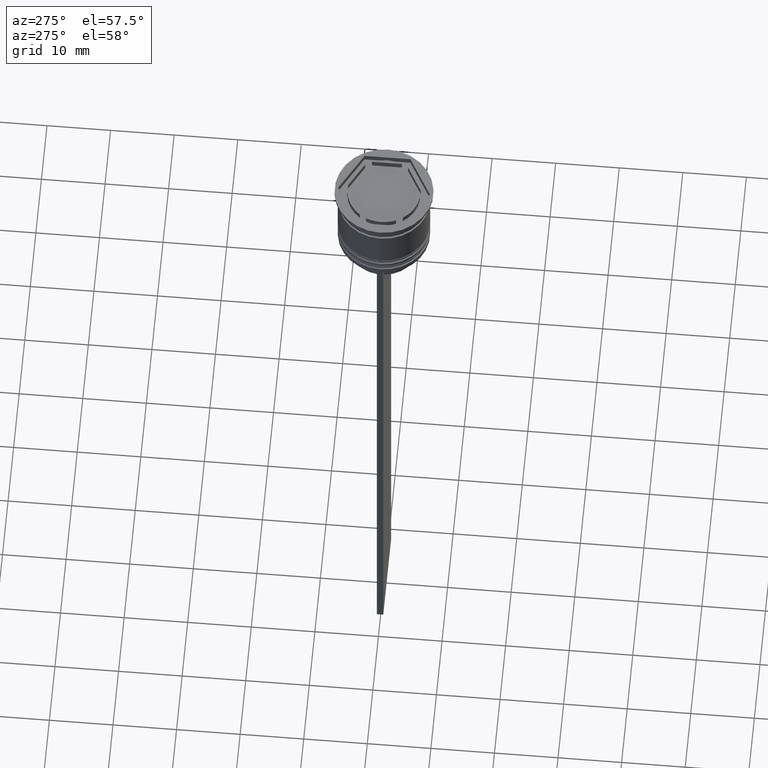
[diagram: clean part render]
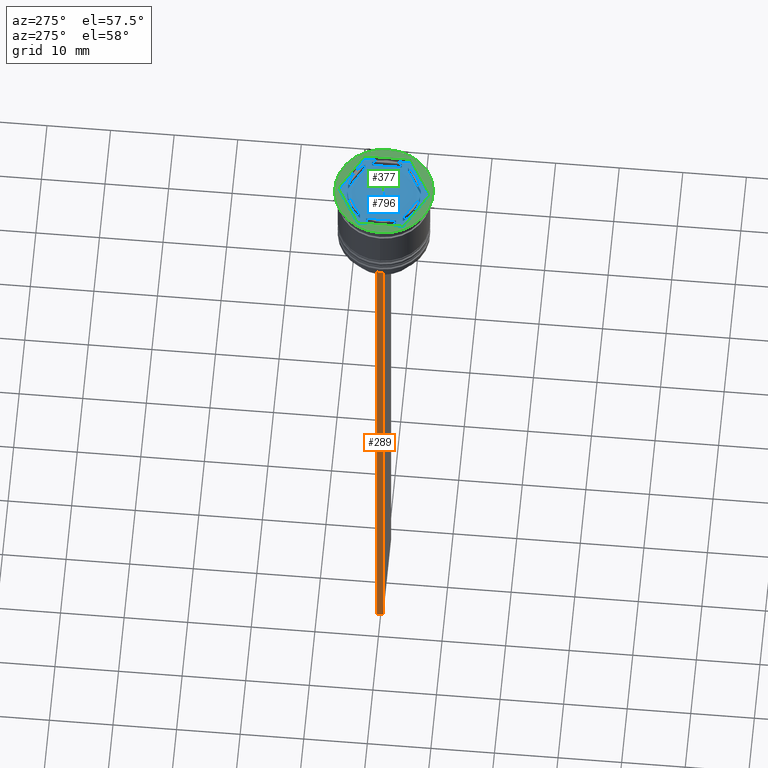
[diagram: same view with three faces highlighted in distinct colors, each labeled with its STEP entity id]
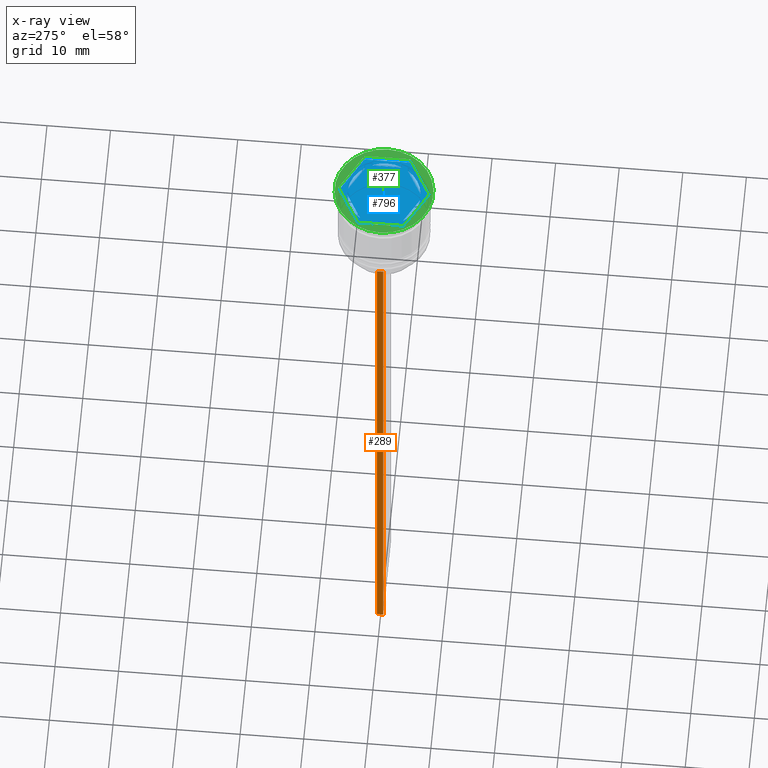
[diagram: x-ray of the same camera — body ghosted, the three highlighted faces saturated]
A machine part, auxiliary view with three faces highlighted in distinct colors.
The next image is the same camera in x-ray (body ghosted, the three faces saturated) — at least one of them is partly hidden behind the body in this view.
Their STEP definitions:

[orange] entity #289 — the highlighted planar face has unit normal (-1, 0, 0).
#46 = AXIS2_PLACEMENT_3D ( 'NONE', #1475, #1619, #1843 ) ;
#97 = CARTESIAN_POINT ( 'NONE',  ( -6.999999999999987566, -0.5000000000000022204, -112.5000000000000000 ) ) ;
#136 = VERTEX_POINT ( 'NONE', #329 ) ;
#168 = VERTEX_POINT ( 'NONE', #2077 ) ;
#178 = EDGE_CURVE ( 'NONE', #168, #136, #284, .T. ) ;
#193 = ORIENTED_EDGE ( 'NONE', *, *, #511, .F. ) ;
#216 = PLANE ( 'NONE',  #46 ) ;
#225 = DIRECTION ( 'NONE',  ( 0.000000000000000000, -1.000000000000000000, 0.000000000000000000 ) ) ;
#258 = EDGE_CURVE ( 'NONE', #1605, #136, #1715, .T. ) ;
#284 = LINE ( 'NONE', #449, #1261 ) ;
#289 = ADVANCED_FACE ( 'NONE', ( #1995 ), #216, .T. ) ;
#329 = CARTESIAN_POINT ( 'NONE',  ( -6.999999999999987566, 0.4999999999999978351, -112.5000000000000000 ) ) ;
#449 = CARTESIAN_POINT ( 'NONE',  ( -6.999999999999987566, 0.4999999999999978351, 1.535668847618198329 ) ) ;
#457 = LINE ( 'NONE', #1672, #2056 ) ;
#511 = EDGE_CURVE ( 'NONE', #168, #2104, #2271, .T. ) ;
#516 = EDGE_CURVE ( 'NONE', #2104, #1605, #457, .T. ) ;
#559 = CARTESIAN_POINT ( 'NONE',  ( -6.999999999999987566, -0.5000000000000022204, -12.50000000000000000 ) ) ;
#729 = VECTOR ( 'NONE', #1098, 1000.000000000000000 ) ;
#731 = VECTOR ( 'NONE', #225, 1000.000000000000000 ) ;
#777 = DIRECTION ( 'NONE',  ( 0.000000000000000000, 0.000000000000000000, -1.000000000000000000 ) ) ;
#1098 = DIRECTION ( 'NONE',  ( 0.000000000000000000, 1.000000000000000000, 0.000000000000000000 ) ) ;
#1261 = VECTOR ( 'NONE', #1979, 1000.000000000000000 ) ;
#1275 = ORIENTED_EDGE ( 'NONE', *, *, #178, .T. ) ;
#1393 = CARTESIAN_POINT ( 'NONE',  ( -6.999999999999987566, -0.5000000000000022204, -112.5000000000000000 ) ) ;
#1475 = CARTESIAN_POINT ( 'NONE',  ( -6.999999999999987566, -0.5000000000000022204, 1.535668847618198329 ) ) ;
#1535 = CARTESIAN_POINT ( 'NONE',  ( -6.999999999999987566, -0.5000000000000022204, -12.50000000000000000 ) ) ;
#1545 = ORIENTED_EDGE ( 'NONE', *, *, #516, .F. ) ;
#1605 = VERTEX_POINT ( 'NONE', #1393 ) ;
#1619 = DIRECTION ( 'NONE',  ( -1.000000000000000000, 0.000000000000000000, 0.000000000000000000 ) ) ;
#1672 = CARTESIAN_POINT ( 'NONE',  ( -6.999999999999987566, -0.5000000000000022204, 1.535668847618198329 ) ) ;
#1715 = LINE ( 'NONE', #97, #729 ) ;
#1814 = EDGE_LOOP ( 'NONE', ( #193, #1275, #2010, #1545 ) ) ;
#1843 = DIRECTION ( 'NONE',  ( 0.000000000000000000, 0.000000000000000000, 1.000000000000000000 ) ) ;
#1979 = DIRECTION ( 'NONE',  ( 0.000000000000000000, 0.000000000000000000, -1.000000000000000000 ) ) ;
#1995 = FACE_OUTER_BOUND ( 'NONE', #1814, .T. ) ;
#2010 = ORIENTED_EDGE ( 'NONE', *, *, #258, .F. ) ;
#2056 = VECTOR ( 'NONE', #777, 1000.000000000000000 ) ;
#2077 = CARTESIAN_POINT ( 'NONE',  ( -6.999999999999987566, 0.4999999999999980571, -12.50000000000000000 ) ) ;
#2104 = VERTEX_POINT ( 'NONE', #559 ) ;
#2271 = LINE ( 'NONE', #1535, #731 ) ;

[blue] entity #796 — the highlighted planar face has unit normal (0, 0, 1).
#8 = CARTESIAN_POINT ( 'NONE',  ( -5.249999999999999112, 2.345207879911715310, -1.000000000000000888 ) ) ;
#28 = ORIENTED_EDGE ( 'NONE', *, *, #1305, .T. ) ;
#36 = CARTESIAN_POINT ( 'NONE',  ( 0.5939903988410074609, -5.719237309824160675, -1.000000000000000888 ) ) ;
#56 = CARTESIAN_POINT ( 'NONE',  ( 0.000000000000000000, 0.000000000000000000, -1.000000000000000000 ) ) ;
#71 = FACE_BOUND ( 'NONE', #515, .T. ) ;
#102 = VERTEX_POINT ( 'NONE', #947 ) ;
#128 = VECTOR ( 'NONE', #1274, 1000.000000000000114 ) ;
#150 = LINE ( 'NONE', #1408, #1714 ) ;
#152 = ORIENTED_EDGE ( 'NONE', *, *, #1771, .F. ) ;
#162 = EDGE_CURVE ( 'NONE', #1618, #965, #1233, .T. ) ;
#164 = ORIENTED_EDGE ( 'NONE', *, *, #558, .T. ) ;
#210 = CARTESIAN_POINT ( 'NONE',  ( 0.000000000000000000, 0.000000000000000000, -1.000000000000000000 ) ) ;
#227 = EDGE_CURVE ( 'NONE', #102, #1012, #1481, .T. ) ;
#237 = CARTESIAN_POINT ( 'NONE',  ( 6.250000000000000000, 3.608439182435161374, -1.000000000000000000 ) ) ;
#259 = ORIENTED_EDGE ( 'NONE', *, *, #420, .F. ) ;
#275 = DIRECTION ( 'NONE',  ( -0.8660254037844387076, -0.4999999999999997224, 0.000000000000000000 ) ) ;
#280 = FACE_BOUND ( 'NONE', #1989, .T. ) ;
#283 = CIRCLE ( 'NONE', #628, 5.750000000000000000 ) ;
#286 = DIRECTION ( 'NONE',  ( 1.000000000000000000, 0.000000000000000000, 0.000000000000000000 ) ) ;
#315 = VECTOR ( 'NONE', #1465, 1000.000000000000114 ) ;
#328 = VERTEX_POINT ( 'NONE', #8 ) ;
#339 = EDGE_LOOP ( 'NONE', ( #2141, #152 ) ) ;
#343 = VERTEX_POINT ( 'NONE', #1799 ) ;
#346 = DIRECTION ( 'NONE',  ( -0.8660254037844388186, 0.4999999999999997224, 0.000000000000000000 ) ) ;
#347 = EDGE_CURVE ( 'NONE', #328, #788, #465, .T. ) ;
#348 = LINE ( 'NONE', #1658, #585 ) ;
#353 = CIRCLE ( 'NONE', #2246, 5.750000000000000000 ) ;
#358 = VECTOR ( 'NONE', #1223, 1000.000000000000000 ) ;
#372 = ORIENTED_EDGE ( 'NONE', *, *, #2076, .F. ) ;
#382 = VERTEX_POINT ( 'NONE', #1142 ) ;
#406 = CARTESIAN_POINT ( 'NONE',  ( -1.734723475976807094E-15, -6.062177826491069510, -1.000000000000000888 ) ) ;
#411 = DIRECTION ( 'NONE',  ( -1.430775808321103440E-16, -1.000000000000000000, 0.000000000000000000 ) ) ;
#420 = EDGE_CURVE ( 'NONE', #1450, #2317, #1180, .T. ) ;
#429 = VERTEX_POINT ( 'NONE', #1880 ) ;
#437 = DIRECTION ( 'NONE',  ( 0.000000000000000000, 0.000000000000000000, 1.000000000000000000 ) ) ;
#452 = VERTEX_POINT ( 'NONE', #1500 ) ;
#465 = CIRCLE ( 'NONE', #1748, 5.750000000000000000 ) ;
#467 = EDGE_CURVE ( 'NONE', #2317, #1450, #845, .T. ) ;
#469 = EDGE_LOOP ( 'NONE', ( #2179, #1251, #907, #164, #893, #28 ) ) ;
#470 = CARTESIAN_POINT ( 'NONE',  ( -6.249999999999999112, -3.608439182435161374, -1.000000000000000000 ) ) ;
#478 = CIRCLE ( 'NONE', #1388, 5.750000000000000000 ) ;
#479 = DIRECTION ( 'NONE',  ( 0.000000000000000000, 0.000000000000000000, 1.000000000000000000 ) ) ;
#499 = CARTESIAN_POINT ( 'NONE',  ( -5.249999999999999112, 3.031088913245535199, -1.000000000000000888 ) ) ;
#506 = ORIENTED_EDGE ( 'NONE', *, *, #347, .F. ) ;
#515 = EDGE_LOOP ( 'NONE', ( #1985, #259 ) ) ;
#523 = DIRECTION ( 'NONE',  ( 1.000000000000000000, 0.000000000000000000, 0.000000000000000000 ) ) ;
#542 = VECTOR ( 'NONE', #1362, 1000.000000000000000 ) ;
#557 = DIRECTION ( 'NONE',  ( 1.000000000000000000, 0.000000000000000000, 0.000000000000000000 ) ) ;
#558 = EDGE_CURVE ( 'NONE', #452, #1323, #1579, .T. ) ;
#562 = CARTESIAN_POINT ( 'NONE',  ( -5.249999999999999112, -3.031088913245534311, -1.000000000000000888 ) ) ;
#577 = DIRECTION ( 'NONE',  ( 1.000000000000000000, 0.000000000000000000, 0.000000000000000000 ) ) ;
#585 = VECTOR ( 'NONE', #915, 1000.000000000000000 ) ;
#616 = CARTESIAN_POINT ( 'NONE',  ( 0.000000000000000000, 0.000000000000000000, -1.000000000000000000 ) ) ;
#628 = AXIS2_PLACEMENT_3D ( 'NONE', #2290, #668, #286 ) ;
#668 = DIRECTION ( 'NONE',  ( 0.000000000000000000, 0.000000000000000000, 1.000000000000000000 ) ) ;
#674 = EDGE_CURVE ( 'NONE', #1467, #1227, #1588, .T. ) ;
#677 = LINE ( 'NONE', #499, #358 ) ;
#696 = CARTESIAN_POINT ( 'NONE',  ( 0.000000000000000000, 0.000000000000000000, -1.000000000000000000 ) ) ;
#704 = EDGE_LOOP ( 'NONE', ( #2184, #1863 ) ) ;
#788 = VERTEX_POINT ( 'NONE', #972 ) ;
#791 = FACE_BOUND ( 'NONE', #704, .T. ) ;
#794 = DIRECTION ( 'NONE',  ( 0.000000000000000000, -1.000000000000000000, 0.000000000000000000 ) ) ;
#796 = ADVANCED_FACE ( 'NONE', ( #2040, #280, #71, #791, #2236, #2250, #2262 ), #1360, .T. ) ;
#832 = EDGE_CURVE ( 'NONE', #788, #429, #353, .T. ) ;
#845 = CIRCLE ( 'NONE', #2169, 5.750000000000000000 ) ;
#864 = DIRECTION ( 'NONE',  ( 0.000000000000000000, 0.000000000000000000, 1.000000000000000000 ) ) ;
#893 = ORIENTED_EDGE ( 'NONE', *, *, #900, .T. ) ;
#900 = EDGE_CURVE ( 'NONE', #1323, #932, #150, .T. ) ;
#907 = ORIENTED_EDGE ( 'NONE', *, *, #1851, .T. ) ;
#915 = DIRECTION ( 'NONE',  ( 2.403703357979454647E-16, 1.000000000000000000, 0.000000000000000000 ) ) ;
#917 = VERTEX_POINT ( 'NONE', #2026 ) ;
#920 = AXIS2_PLACEMENT_3D ( 'NONE', #616, #437, #1882 ) ;
#932 = VERTEX_POINT ( 'NONE', #1298 ) ;
#947 = CARTESIAN_POINT ( 'NONE',  ( 5.249999999999997335, -2.345207879911720639, -1.000000000000000888 ) ) ;
#965 = VERTEX_POINT ( 'NONE', #2084 ) ;
#972 = CARTESIAN_POINT ( 'NONE',  ( -5.750000000000000000, 0.000000000000000000, -1.000000000000000000 ) ) ;
#973 = DIRECTION ( 'NONE',  ( 0.000000000000000000, 0.000000000000000000, 1.000000000000000000 ) ) ;
#1012 = VERTEX_POINT ( 'NONE', #1501 ) ;
#1040 = VECTOR ( 'NONE', #794, 1000.000000000000000 ) ;
#1056 = CARTESIAN_POINT ( 'NONE',  ( 5.249999999999997335, 3.031088913245537864, -1.000000000000000888 ) ) ;
#1061 = ORIENTED_EDGE ( 'NONE', *, *, #832, .F. ) ;
#1072 = CARTESIAN_POINT ( 'NONE',  ( 8.729740977282959667E-16, -7.216878364870321860, -1.000000000000000000 ) ) ;
#1082 = VECTOR ( 'NONE', #411, 1000.000000000000000 ) ;
#1086 = VERTEX_POINT ( 'NONE', #1711 ) ;
#1087 = LINE ( 'NONE', #1808, #315 ) ;
#1109 = CARTESIAN_POINT ( 'NONE',  ( 0.000000000000000000, 0.000000000000000000, -1.000000000000000000 ) ) ;
#1142 = CARTESIAN_POINT ( 'NONE',  ( -4.656009601158991096, -3.374029429912444034, -1.000000000000000888 ) ) ;
#1152 = LINE ( 'NONE', #2256, #1040 ) ;
#1180 = LINE ( 'NONE', #406, #1597 ) ;
#1203 = DIRECTION ( 'NONE',  ( 1.000000000000000000, 0.000000000000000000, 0.000000000000000000 ) ) ;
#1222 = AXIS2_PLACEMENT_3D ( 'NONE', #696, #1375, #523 ) ;
#1223 = DIRECTION ( 'NONE',  ( 0.000000000000000000, 1.000000000000000000, 0.000000000000000000 ) ) ;
#1227 = VERTEX_POINT ( 'NONE', #1796 ) ;
#1233 = LINE ( 'NONE', #1702, #542 ) ;
#1251 = ORIENTED_EDGE ( 'NONE', *, *, #1363, .T. ) ;
#1274 = DIRECTION ( 'NONE',  ( -0.8660254037844384856, 0.5000000000000002220, 0.000000000000000000 ) ) ;
#1298 = CARTESIAN_POINT ( 'NONE',  ( 6.249999999999998224, -3.608439182435161374, -1.000000000000000000 ) ) ;
#1300 = DIRECTION ( 'NONE',  ( 1.000000000000000000, 0.000000000000000000, 0.000000000000000000 ) ) ;
#1305 = EDGE_CURVE ( 'NONE', #932, #1467, #348, .T. ) ;
#1313 = ORIENTED_EDGE ( 'NONE', *, *, #2036, .F. ) ;
#1323 = VERTEX_POINT ( 'NONE', #1072 ) ;
#1325 = VERTEX_POINT ( 'NONE', #1431 ) ;
#1360 = PLANE ( 'NONE',  #920 ) ;
#1362 = DIRECTION ( 'NONE',  ( 0.8660254037844387076, 0.4999999999999999445, -0.000000000000000000 ) ) ;
#1363 = EDGE_CURVE ( 'NONE', #1227, #1086, #1087, .T. ) ;
#1375 = DIRECTION ( 'NONE',  ( 0.000000000000000000, 0.000000000000000000, 1.000000000000000000 ) ) ;
#1388 = AXIS2_PLACEMENT_3D ( 'NONE', #210, #973, #1300 ) ;
#1403 = CARTESIAN_POINT ( 'NONE',  ( -4.656009601158989319, 3.374029429912446698, -1.000000000000000888 ) ) ;
#1408 = CARTESIAN_POINT ( 'NONE',  ( 8.729740977282959667E-16, -7.216878364870321860, -1.000000000000000000 ) ) ;
#1426 = EDGE_LOOP ( 'NONE', ( #1313, #1820 ) ) ;
#1431 = CARTESIAN_POINT ( 'NONE',  ( 4.656009601158988431, 3.374029429912448919, -1.000000000000000888 ) ) ;
#1435 = CARTESIAN_POINT ( 'NONE',  ( 0.000000000000000000, 0.000000000000000000, -1.000000000000000000 ) ) ;
#1450 = VERTEX_POINT ( 'NONE', #2081 ) ;
#1465 = DIRECTION ( 'NONE',  ( -0.8660254037844385966, -0.5000000000000001110, 0.000000000000000000 ) ) ;
#1467 = VERTEX_POINT ( 'NONE', #237 ) ;
#1481 = CIRCLE ( 'NONE', #1222, 5.750000000000000000 ) ;
#1493 = CIRCLE ( 'NONE', #2067, 5.750000000000000000 ) ;
#1500 = CARTESIAN_POINT ( 'NONE',  ( -6.249999999999999112, -3.608439182435161374, -1.000000000000000000 ) ) ;
#1501 = CARTESIAN_POINT ( 'NONE',  ( 5.249999999999997335, 2.345207879911718862, -1.000000000000000888 ) ) ;
#1503 = CARTESIAN_POINT ( 'NONE',  ( 5.249999999999996447, -3.031088913245536975, -1.000000000000000888 ) ) ;
#1579 = LINE ( 'NONE', #470, #2243 ) ;
#1588 = LINE ( 'NONE', #2315, #1944 ) ;
#1597 = VECTOR ( 'NONE', #275, 1000.000000000000114 ) ;
#1618 = VERTEX_POINT ( 'NONE', #1403 ) ;
#1658 = CARTESIAN_POINT ( 'NONE',  ( 6.249999999999998224, -3.608439182435161374, -1.000000000000000000 ) ) ;
#1660 = DIRECTION ( 'NONE',  ( 0.000000000000000000, 0.000000000000000000, 1.000000000000000000 ) ) ;
#1676 = EDGE_CURVE ( 'NONE', #343, #382, #2327, .T. ) ;
#1702 = CARTESIAN_POINT ( 'NONE',  ( 8.673617379884035472E-16, 6.062177826491070398, -1.000000000000000888 ) ) ;
#1711 = CARTESIAN_POINT ( 'NONE',  ( -6.249999999999999112, 3.608439182435158710, -1.000000000000000000 ) ) ;
#1714 = VECTOR ( 'NONE', #2136, 1000.000000000000000 ) ;
#1744 = DIRECTION ( 'NONE',  ( 0.8660254037844385966, -0.4999999999999998890, 0.000000000000000000 ) ) ;
#1748 = AXIS2_PLACEMENT_3D ( 'NONE', #1109, #1660, #557 ) ;
#1771 = EDGE_CURVE ( 'NONE', #917, #1325, #1972, .T. ) ;
#1777 = DIRECTION ( 'NONE',  ( 0.8660254037844387076, -0.4999999999999998335, 0.000000000000000000 ) ) ;
#1796 = CARTESIAN_POINT ( 'NONE',  ( 0.000000000000000000, 7.216878364870320084, -1.000000000000000000 ) ) ;
#1799 = CARTESIAN_POINT ( 'NONE',  ( -0.5939903988410105695, -5.719237309824160675, -1.000000000000000888 ) ) ;
#1808 = CARTESIAN_POINT ( 'NONE',  ( 0.000000000000000000, 7.216878364870320084, -1.000000000000000000 ) ) ;
#1820 = ORIENTED_EDGE ( 'NONE', *, *, #162, .F. ) ;
#1851 = EDGE_CURVE ( 'NONE', #1086, #452, #1152, .T. ) ;
#1863 = ORIENTED_EDGE ( 'NONE', *, *, #1676, .F. ) ;
#1880 = CARTESIAN_POINT ( 'NONE',  ( -5.249999999999999112, -2.345207879911715310, -1.000000000000000888 ) ) ;
#1882 = DIRECTION ( 'NONE',  ( 1.000000000000000000, 0.000000000000000000, -0.000000000000000000 ) ) ;
#1904 = DIRECTION ( 'NONE',  ( 0.000000000000000000, 0.000000000000000000, 1.000000000000000000 ) ) ;
#1923 = EDGE_LOOP ( 'NONE', ( #506, #372, #1061 ) ) ;
#1944 = VECTOR ( 'NONE', #346, 1000.000000000000000 ) ;
#1972 = LINE ( 'NONE', #1056, #2215 ) ;
#1985 = ORIENTED_EDGE ( 'NONE', *, *, #467, .F. ) ;
#1989 = EDGE_LOOP ( 'NONE', ( #2257, #2127 ) ) ;
#1993 = EDGE_CURVE ( 'NONE', #1325, #917, #1493, .T. ) ;
#2026 = CARTESIAN_POINT ( 'NONE',  ( 0.5939903988410126789, 5.719237309824160675, -1.000000000000000888 ) ) ;
#2036 = EDGE_CURVE ( 'NONE', #965, #1618, #283, .T. ) ;
#2040 = FACE_BOUND ( 'NONE', #339, .T. ) ;
#2041 = LINE ( 'NONE', #1503, #1082 ) ;
#2067 = AXIS2_PLACEMENT_3D ( 'NONE', #2115, #479, #1203 ) ;
#2076 = EDGE_CURVE ( 'NONE', #429, #328, #677, .T. ) ;
#2081 = CARTESIAN_POINT ( 'NONE',  ( 4.656009601158990208, -3.374029429912445810, -1.000000000000000888 ) ) ;
#2083 = DIRECTION ( 'NONE',  ( 1.000000000000000000, 0.000000000000000000, 0.000000000000000000 ) ) ;
#2084 = CARTESIAN_POINT ( 'NONE',  ( -0.5939903988410105695, 5.719237309824159787, -1.000000000000000888 ) ) ;
#2115 = CARTESIAN_POINT ( 'NONE',  ( 0.000000000000000000, 0.000000000000000000, -1.000000000000000000 ) ) ;
#2127 = ORIENTED_EDGE ( 'NONE', *, *, #2296, .F. ) ;
#2136 = DIRECTION ( 'NONE',  ( 0.8660254037844385966, 0.5000000000000001110, 0.000000000000000000 ) ) ;
#2141 = ORIENTED_EDGE ( 'NONE', *, *, #1993, .F. ) ;
#2169 = AXIS2_PLACEMENT_3D ( 'NONE', #56, #1904, #2083 ) ;
#2179 = ORIENTED_EDGE ( 'NONE', *, *, #674, .T. ) ;
#2184 = ORIENTED_EDGE ( 'NONE', *, *, #2249, .F. ) ;
#2215 = VECTOR ( 'NONE', #1777, 1000.000000000000114 ) ;
#2236 = FACE_BOUND ( 'NONE', #1923, .T. ) ;
#2243 = VECTOR ( 'NONE', #1744, 1000.000000000000227 ) ;
#2246 = AXIS2_PLACEMENT_3D ( 'NONE', #1435, #864, #577 ) ;
#2249 = EDGE_CURVE ( 'NONE', #382, #343, #478, .T. ) ;
#2250 = FACE_BOUND ( 'NONE', #1426, .T. ) ;
#2256 = CARTESIAN_POINT ( 'NONE',  ( -6.249999999999999112, 3.608439182435158710, -1.000000000000000000 ) ) ;
#2257 = ORIENTED_EDGE ( 'NONE', *, *, #227, .F. ) ;
#2262 = FACE_OUTER_BOUND ( 'NONE', #469, .T. ) ;
#2290 = CARTESIAN_POINT ( 'NONE',  ( 0.000000000000000000, 0.000000000000000000, -1.000000000000000000 ) ) ;
#2296 = EDGE_CURVE ( 'NONE', #1012, #102, #2041, .T. ) ;
#2315 = CARTESIAN_POINT ( 'NONE',  ( 6.250000000000000000, 3.608439182435161374, -1.000000000000000000 ) ) ;
#2317 = VERTEX_POINT ( 'NONE', #36 ) ;
#2327 = LINE ( 'NONE', #562, #128 ) ;

[green] entity #377 — the highlighted planar face has unit normal (0, -0, 1).
#89 = EDGE_CURVE ( 'NONE', #872, #1255, #1884, .T. ) ;
#103 = DIRECTION ( 'NONE',  ( 1.000000000000000000, 0.000000000000000000, 0.000000000000000000 ) ) ;
#104 = DIRECTION ( 'NONE',  ( 2.403703357979454647E-16, 1.000000000000000000, 0.000000000000000000 ) ) ;
#195 = VERTEX_POINT ( 'NONE', #1896 ) ;
#202 = AXIS2_PLACEMENT_3D ( 'NONE', #827, #1134, #801 ) ;
#209 = FACE_BOUND ( 'NONE', #332, .T. ) ;
#239 = AXIS2_PLACEMENT_3D ( 'NONE', #1356, #759, #967 ) ;
#240 = DIRECTION ( 'NONE',  ( 0.8660254037844385966, 0.5000000000000001110, 0.000000000000000000 ) ) ;
#332 = EDGE_LOOP ( 'NONE', ( #2023, #1915, #1582, #503, #2156, #1849 ) ) ;
#377 = ADVANCED_FACE ( 'NONE', ( #209, #2189 ), #2038, .T. ) ;
#400 = DIRECTION ( 'NONE',  ( -0.8660254037844385966, -0.5000000000000001110, 0.000000000000000000 ) ) ;
#403 = EDGE_CURVE ( 'NONE', #1860, #1415, #2058, .T. ) ;
#419 = LINE ( 'NONE', #615, #887 ) ;
#444 = CARTESIAN_POINT ( 'NONE',  ( 6.249999999999998224, -3.608439182435161374, 0.000000000000000000 ) ) ;
#490 = DIRECTION ( 'NONE',  ( -0.8660254037844388186, 0.4999999999999997224, 0.000000000000000000 ) ) ;
#503 = ORIENTED_EDGE ( 'NONE', *, *, #683, .F. ) ;
#615 = CARTESIAN_POINT ( 'NONE',  ( 6.249999999999998224, -3.608439182435161374, 0.000000000000000000 ) ) ;
#638 = CARTESIAN_POINT ( 'NONE',  ( 0.000000000000000000, 0.000000000000000000, 0.000000000000000000 ) ) ;
#662 = CIRCLE ( 'NONE', #202, 7.750000000000000000 ) ;
#683 = EDGE_CURVE ( 'NONE', #1283, #1860, #708, .T. ) ;
#708 = LINE ( 'NONE', #1974, #2287 ) ;
#759 = DIRECTION ( 'NONE',  ( -0.000000000000000000, -0.000000000000000000, 1.000000000000000000 ) ) ;
#769 = VECTOR ( 'NONE', #2120, 1000.000000000000000 ) ;
#789 = DIRECTION ( 'NONE',  ( 0.000000000000000000, -0.000000000000000000, 1.000000000000000000 ) ) ;
#801 = DIRECTION ( 'NONE',  ( 1.000000000000000000, 0.000000000000000000, 0.000000000000000000 ) ) ;
#827 = CARTESIAN_POINT ( 'NONE',  ( 0.000000000000000000, 0.000000000000000000, 0.000000000000000000 ) ) ;
#866 = EDGE_LOOP ( 'NONE', ( #1295, #2094 ) ) ;
#872 = VERTEX_POINT ( 'NONE', #1583 ) ;
#887 = VECTOR ( 'NONE', #104, 1000.000000000000000 ) ;
#946 = CARTESIAN_POINT ( 'NONE',  ( 6.250000000000000000, 3.608439182435161374, 0.000000000000000000 ) ) ;
#967 = DIRECTION ( 'NONE',  ( 1.000000000000000000, 0.000000000000000000, 0.000000000000000000 ) ) ;
#1027 = EDGE_CURVE ( 'NONE', #1415, #2303, #419, .T. ) ;
#1045 = EDGE_CURVE ( 'NONE', #1404, #195, #662, .T. ) ;
#1122 = EDGE_CURVE ( 'NONE', #1255, #1283, #1745, .T. ) ;
#1134 = DIRECTION ( 'NONE',  ( -0.000000000000000000, -0.000000000000000000, 1.000000000000000000 ) ) ;
#1252 = DIRECTION ( 'NONE',  ( 0.8660254037844385966, -0.4999999999999998890, 0.000000000000000000 ) ) ;
#1255 = VERTEX_POINT ( 'NONE', #1276 ) ;
#1276 = CARTESIAN_POINT ( 'NONE',  ( -6.249999999999999112, 3.608439182435158710, 0.000000000000000000 ) ) ;
#1283 = VERTEX_POINT ( 'NONE', #2002 ) ;
#1294 = VECTOR ( 'NONE', #400, 1000.000000000000114 ) ;
#1295 = ORIENTED_EDGE ( 'NONE', *, *, #1045, .T. ) ;
#1356 = CARTESIAN_POINT ( 'NONE',  ( 0.000000000000000000, 0.000000000000000000, 0.000000000000000000 ) ) ;
#1391 = CARTESIAN_POINT ( 'NONE',  ( 6.250000000000000000, 3.608439182435161374, 0.000000000000000000 ) ) ;
#1404 = VERTEX_POINT ( 'NONE', #1696 ) ;
#1407 = EDGE_CURVE ( 'NONE', #195, #1404, #1717, .T. ) ;
#1415 = VERTEX_POINT ( 'NONE', #444 ) ;
#1449 = AXIS2_PLACEMENT_3D ( 'NONE', #638, #789, #103 ) ;
#1505 = CARTESIAN_POINT ( 'NONE',  ( 8.729740977282959667E-16, -7.216878364870321860, 0.000000000000000000 ) ) ;
#1582 = ORIENTED_EDGE ( 'NONE', *, *, #403, .F. ) ;
#1583 = CARTESIAN_POINT ( 'NONE',  ( 0.000000000000000000, 7.216878364870319196, 0.000000000000000000 ) ) ;
#1589 = CARTESIAN_POINT ( 'NONE',  ( -6.249999999999999112, 3.608439182435158710, 0.000000000000000000 ) ) ;
#1655 = CARTESIAN_POINT ( 'NONE',  ( 0.000000000000000000, 7.216878364870320084, 0.000000000000000000 ) ) ;
#1696 = CARTESIAN_POINT ( 'NONE',  ( 7.750000000000000000, 0.000000000000000000, 0.000000000000000000 ) ) ;
#1717 = CIRCLE ( 'NONE', #239, 7.750000000000000000 ) ;
#1745 = LINE ( 'NONE', #1589, #769 ) ;
#1849 = ORIENTED_EDGE ( 'NONE', *, *, #89, .F. ) ;
#1860 = VERTEX_POINT ( 'NONE', #1505 ) ;
#1864 = CARTESIAN_POINT ( 'NONE',  ( 8.729740977282959667E-16, -7.216878364870321860, 0.000000000000000000 ) ) ;
#1884 = LINE ( 'NONE', #1655, #1294 ) ;
#1896 = CARTESIAN_POINT ( 'NONE',  ( -7.750000000000000000, 9.491012693391987787E-16, 0.000000000000000000 ) ) ;
#1915 = ORIENTED_EDGE ( 'NONE', *, *, #1027, .F. ) ;
#1951 = VECTOR ( 'NONE', #490, 1000.000000000000000 ) ;
#1974 = CARTESIAN_POINT ( 'NONE',  ( -6.249999999999999112, -3.608439182435161374, 0.000000000000000000 ) ) ;
#2002 = CARTESIAN_POINT ( 'NONE',  ( -6.249999999999999112, -3.608439182435161374, 0.000000000000000000 ) ) ;
#2023 = ORIENTED_EDGE ( 'NONE', *, *, #2045, .F. ) ;
#2038 = PLANE ( 'NONE',  #1449 ) ;
#2045 = EDGE_CURVE ( 'NONE', #2303, #872, #2079, .T. ) ;
#2058 = LINE ( 'NONE', #1864, #2320 ) ;
#2079 = LINE ( 'NONE', #1391, #1951 ) ;
#2094 = ORIENTED_EDGE ( 'NONE', *, *, #1407, .T. ) ;
#2120 = DIRECTION ( 'NONE',  ( 0.000000000000000000, -1.000000000000000000, 0.000000000000000000 ) ) ;
#2156 = ORIENTED_EDGE ( 'NONE', *, *, #1122, .F. ) ;
#2189 = FACE_OUTER_BOUND ( 'NONE', #866, .T. ) ;
#2287 = VECTOR ( 'NONE', #1252, 1000.000000000000227 ) ;
#2303 = VERTEX_POINT ( 'NONE', #946 ) ;
#2320 = VECTOR ( 'NONE', #240, 1000.000000000000000 ) ;